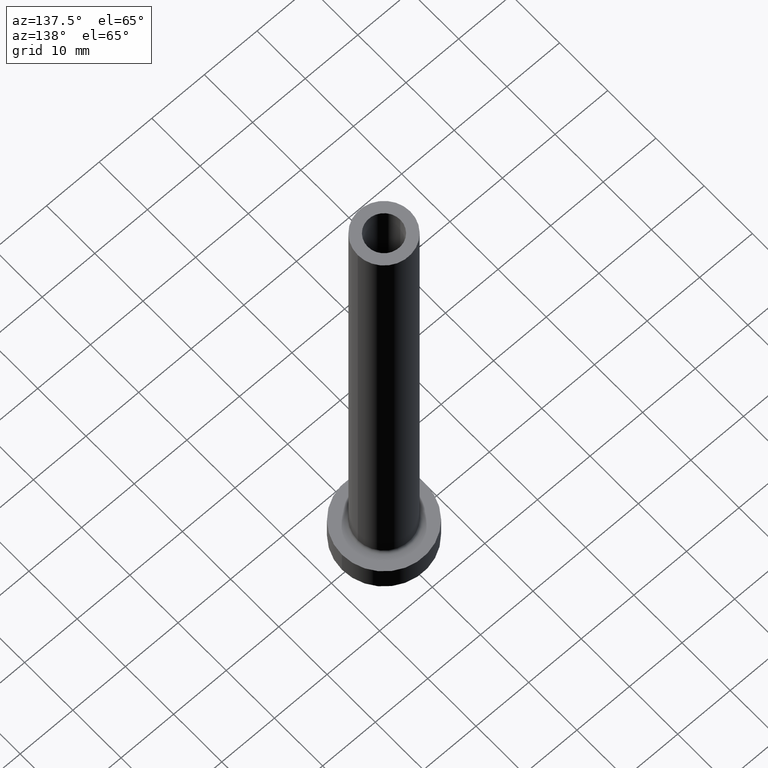
[diagram: clean part render]
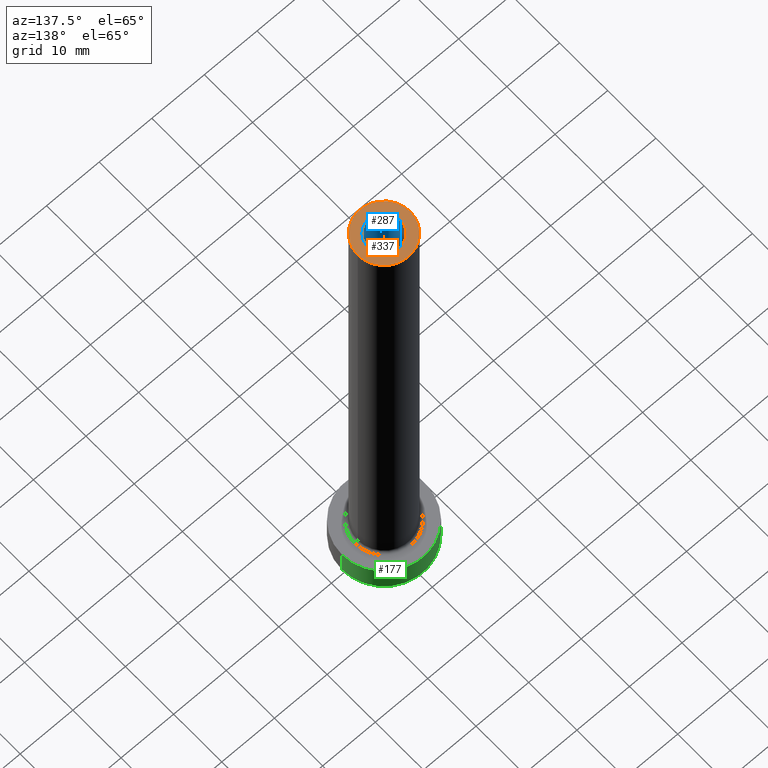
[diagram: same view with three faces highlighted in distinct colors, each labeled with its STEP entity id]
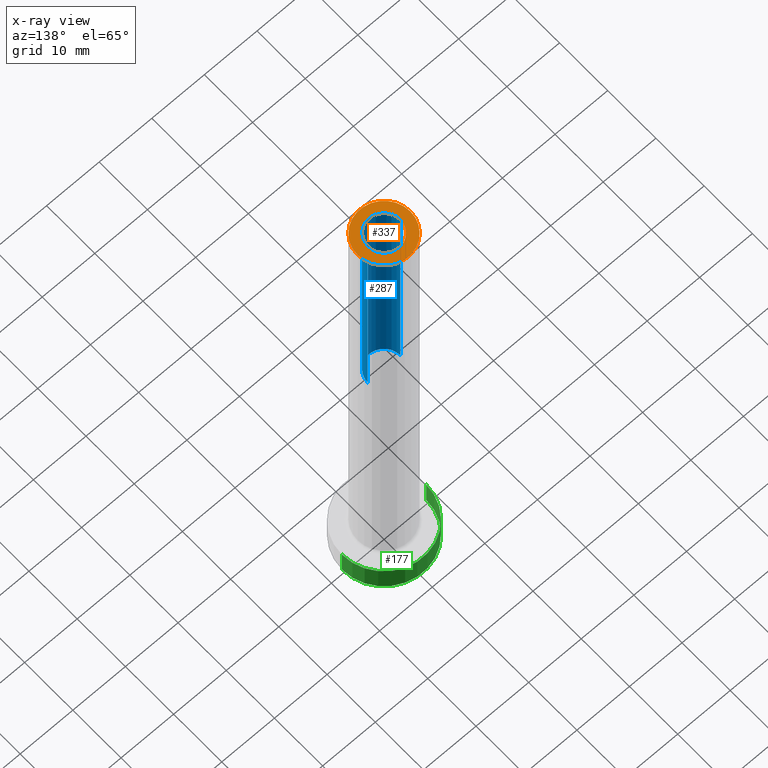
[diagram: x-ray of the same camera — body ghosted, the three highlighted faces saturated]
A machine part, auxiliary view with three faces highlighted in distinct colors.
The next image is the same camera in x-ray (body ghosted, the three faces saturated) — at least one of them is partly hidden behind the body in this view.
Their STEP definitions:

[orange] entity #337 — the highlighted planar face has unit normal (0, 0, 1).
#16 = CARTESIAN_POINT ( 'NONE',  ( -5.000000000000000000, 0.000000000000000000, 100.0000000000000000 ) ) ;
#17 = DIRECTION ( 'NONE',  ( 1.000000000000000000, 0.000000000000000000, 0.000000000000000000 ) ) ;
#18 = EDGE_LOOP ( 'NONE', ( #279, #242 ) ) ;
#31 = CARTESIAN_POINT ( 'NONE',  ( 0.000000000000000000, 0.000000000000000000, 100.0000000000000000 ) ) ;
#33 = VERTEX_POINT ( 'NONE', #83 ) ;
#44 = VERTEX_POINT ( 'NONE', #54 ) ;
#47 = AXIS2_PLACEMENT_3D ( 'NONE', #414, #182, #17 ) ;
#54 = CARTESIAN_POINT ( 'NONE',  ( 3.100000000000000089, 3.796405077356793932E-16, 100.0000000000000000 ) ) ;
#80 = CARTESIAN_POINT ( 'NONE',  ( 5.000000000000000000, 6.123233995736766282E-16, 100.0000000000000000 ) ) ;
#83 = CARTESIAN_POINT ( 'NONE',  ( -3.100000000000000089, 0.000000000000000000, 100.0000000000000000 ) ) ;
#93 = DIRECTION ( 'NONE',  ( 1.000000000000000000, 0.000000000000000000, -0.000000000000000000 ) ) ;
#102 = AXIS2_PLACEMENT_3D ( 'NONE', #31, #461, #93 ) ;
#106 = EDGE_CURVE ( 'NONE', #207, #170, #235, .T. ) ;
#124 = DIRECTION ( 'NONE',  ( 1.000000000000000000, 0.000000000000000000, 0.000000000000000000 ) ) ;
#128 = CIRCLE ( 'NONE', #288, 3.100000000000000089 ) ;
#134 = CIRCLE ( 'NONE', #171, 5.000000000000000000 ) ;
#154 = DIRECTION ( 'NONE',  ( 0.000000000000000000, 0.000000000000000000, 1.000000000000000000 ) ) ;
#163 = EDGE_LOOP ( 'NONE', ( #384, #345 ) ) ;
#170 = VERTEX_POINT ( 'NONE', #16 ) ;
#171 = AXIS2_PLACEMENT_3D ( 'NONE', #358, #175, #401 ) ;
#175 = DIRECTION ( 'NONE',  ( 0.000000000000000000, 0.000000000000000000, 1.000000000000000000 ) ) ;
#182 = DIRECTION ( 'NONE',  ( 0.000000000000000000, 0.000000000000000000, 1.000000000000000000 ) ) ;
#183 = DIRECTION ( 'NONE',  ( 0.000000000000000000, 0.000000000000000000, 1.000000000000000000 ) ) ;
#207 = VERTEX_POINT ( 'NONE', #80 ) ;
#235 = CIRCLE ( 'NONE', #457, 5.000000000000000000 ) ;
#240 = FACE_BOUND ( 'NONE', #163, .T. ) ;
#242 = ORIENTED_EDGE ( 'NONE', *, *, #106, .T. ) ;
#273 = CARTESIAN_POINT ( 'NONE',  ( 0.000000000000000000, 0.000000000000000000, 100.0000000000000000 ) ) ;
#279 = ORIENTED_EDGE ( 'NONE', *, *, #399, .T. ) ;
#288 = AXIS2_PLACEMENT_3D ( 'NONE', #273, #183, #456 ) ;
#305 = CARTESIAN_POINT ( 'NONE',  ( 0.000000000000000000, 0.000000000000000000, 100.0000000000000000 ) ) ;
#306 = EDGE_CURVE ( 'NONE', #33, #44, #128, .T. ) ;
#314 = PLANE ( 'NONE',  #102 ) ;
#324 = CIRCLE ( 'NONE', #47, 3.100000000000000089 ) ;
#337 = ADVANCED_FACE ( 'NONE', ( #240, #431 ), #314, .T. ) ;
#345 = ORIENTED_EDGE ( 'NONE', *, *, #371, .F. ) ;
#358 = CARTESIAN_POINT ( 'NONE',  ( 0.000000000000000000, 0.000000000000000000, 100.0000000000000000 ) ) ;
#371 = EDGE_CURVE ( 'NONE', #44, #33, #324, .T. ) ;
#384 = ORIENTED_EDGE ( 'NONE', *, *, #306, .F. ) ;
#399 = EDGE_CURVE ( 'NONE', #170, #207, #134, .T. ) ;
#401 = DIRECTION ( 'NONE',  ( 1.000000000000000000, 0.000000000000000000, 0.000000000000000000 ) ) ;
#414 = CARTESIAN_POINT ( 'NONE',  ( 0.000000000000000000, 0.000000000000000000, 100.0000000000000000 ) ) ;
#431 = FACE_OUTER_BOUND ( 'NONE', #18, .T. ) ;
#456 = DIRECTION ( 'NONE',  ( 1.000000000000000000, 0.000000000000000000, 0.000000000000000000 ) ) ;
#457 = AXIS2_PLACEMENT_3D ( 'NONE', #305, #154, #124 ) ;
#461 = DIRECTION ( 'NONE',  ( 0.000000000000000000, 0.000000000000000000, 1.000000000000000000 ) ) ;

[blue] entity #287 — the highlighted cylindrical surface (edge-blend (fillet) strip) has radius 3.1 mm, axis along (0, 0, -1).
#4 = EDGE_CURVE ( 'NONE', #33, #114, #303, .T. ) ;
#10 = EDGE_CURVE ( 'NONE', #44, #169, #312, .T. ) ;
#22 = CARTESIAN_POINT ( 'NONE',  ( 3.100000000000000089, 3.796405077356793932E-16, 100.0000000000000000 ) ) ;
#26 = FACE_OUTER_BOUND ( 'NONE', #227, .T. ) ;
#27 = AXIS2_PLACEMENT_3D ( 'NONE', #428, #205, #346 ) ;
#33 = VERTEX_POINT ( 'NONE', #83 ) ;
#42 = CARTESIAN_POINT ( 'NONE',  ( -3.100000000000000089, 0.000000000000000000, 55.00000000000000711 ) ) ;
#44 = VERTEX_POINT ( 'NONE', #54 ) ;
#52 = VECTOR ( 'NONE', #159, 1000.000000000000000 ) ;
#54 = CARTESIAN_POINT ( 'NONE',  ( 3.100000000000000089, 3.796405077356793932E-16, 100.0000000000000000 ) ) ;
#83 = CARTESIAN_POINT ( 'NONE',  ( -3.100000000000000089, 0.000000000000000000, 100.0000000000000000 ) ) ;
#114 = VERTEX_POINT ( 'NONE', #42 ) ;
#128 = CIRCLE ( 'NONE', #288, 3.100000000000000089 ) ;
#131 = DIRECTION ( 'NONE',  ( 0.000000000000000000, 0.000000000000000000, -1.000000000000000000 ) ) ;
#159 = DIRECTION ( 'NONE',  ( 0.000000000000000000, 0.000000000000000000, -1.000000000000000000 ) ) ;
#167 = CARTESIAN_POINT ( 'NONE',  ( 0.000000000000000000, 0.000000000000000000, 55.00000000000000711 ) ) ;
#169 = VERTEX_POINT ( 'NONE', #444 ) ;
#183 = DIRECTION ( 'NONE',  ( 0.000000000000000000, 0.000000000000000000, 1.000000000000000000 ) ) ;
#205 = DIRECTION ( 'NONE',  ( 0.000000000000000000, 0.000000000000000000, -1.000000000000000000 ) ) ;
#206 = ORIENTED_EDGE ( 'NONE', *, *, #352, .F. ) ;
#223 = DIRECTION ( 'NONE',  ( 1.000000000000000000, 0.000000000000000000, 0.000000000000000000 ) ) ;
#227 = EDGE_LOOP ( 'NONE', ( #430, #393, #206, #369 ) ) ;
#273 = CARTESIAN_POINT ( 'NONE',  ( 0.000000000000000000, 0.000000000000000000, 100.0000000000000000 ) ) ;
#287 = ADVANCED_FACE ( 'NONE', ( #26 ), #386, .F. ) ;
#288 = AXIS2_PLACEMENT_3D ( 'NONE', #273, #183, #456 ) ;
#303 = LINE ( 'NONE', #341, #395 ) ;
#306 = EDGE_CURVE ( 'NONE', #33, #44, #128, .T. ) ;
#312 = LINE ( 'NONE', #22, #52 ) ;
#341 = CARTESIAN_POINT ( 'NONE',  ( -3.100000000000000089, 0.000000000000000000, 100.0000000000000000 ) ) ;
#343 = CIRCLE ( 'NONE', #409, 3.100000000000000089 ) ;
#346 = DIRECTION ( 'NONE',  ( -1.000000000000000000, 0.000000000000000000, 0.000000000000000000 ) ) ;
#348 = DIRECTION ( 'NONE',  ( 0.000000000000000000, 0.000000000000000000, 1.000000000000000000 ) ) ;
#352 = EDGE_CURVE ( 'NONE', #114, #169, #343, .T. ) ;
#369 = ORIENTED_EDGE ( 'NONE', *, *, #4, .F. ) ;
#386 = CYLINDRICAL_SURFACE ( 'NONE', #27, 3.100000000000000089 ) ;
#393 = ORIENTED_EDGE ( 'NONE', *, *, #10, .T. ) ;
#395 = VECTOR ( 'NONE', #131, 1000.000000000000000 ) ;
#409 = AXIS2_PLACEMENT_3D ( 'NONE', #167, #348, #223 ) ;
#428 = CARTESIAN_POINT ( 'NONE',  ( 0.000000000000000000, 0.000000000000000000, 100.0000000000000000 ) ) ;
#430 = ORIENTED_EDGE ( 'NONE', *, *, #306, .T. ) ;
#444 = CARTESIAN_POINT ( 'NONE',  ( 3.100000000000000089, 3.796405077356793932E-16, 55.00000000000000711 ) ) ;
#456 = DIRECTION ( 'NONE',  ( 1.000000000000000000, 0.000000000000000000, 0.000000000000000000 ) ) ;

[green] entity #177 — the highlighted cylindrical surface (partial cylindrical patch) has radius 8 mm, axis along (-0, -0, -1).
#2 = EDGE_CURVE ( 'NONE', #245, #405, #45, .T. ) ;
#13 = CARTESIAN_POINT ( 'NONE',  ( 0.000000000000000000, 0.000000000000000000, 5.000000000000000000 ) ) ;
#21 = AXIS2_PLACEMENT_3D ( 'NONE', #176, #326, #222 ) ;
#45 = CIRCLE ( 'NONE', #310, 8.000000000000000000 ) ;
#63 = CARTESIAN_POINT ( 'NONE',  ( 0.000000000000000000, 0.000000000000000000, 5.000000000000000000 ) ) ;
#92 = VERTEX_POINT ( 'NONE', #308 ) ;
#111 = DIRECTION ( 'NONE',  ( -0.000000000000000000, -0.000000000000000000, -1.000000000000000000 ) ) ;
#113 = EDGE_CURVE ( 'NONE', #405, #140, #301, .T. ) ;
#116 = CIRCLE ( 'NONE', #21, 8.000000000000000000 ) ;
#138 = VECTOR ( 'NONE', #144, 1000.000000000000000 ) ;
#140 = VERTEX_POINT ( 'NONE', #141 ) ;
#141 = CARTESIAN_POINT ( 'NONE',  ( -8.000000000000000000, 0.000000000000000000, 0.000000000000000000 ) ) ;
#144 = DIRECTION ( 'NONE',  ( -0.000000000000000000, -0.000000000000000000, -1.000000000000000000 ) ) ;
#145 = EDGE_CURVE ( 'NONE', #92, #140, #116, .T. ) ;
#147 = CARTESIAN_POINT ( 'NONE',  ( -8.000000000000000000, 0.000000000000000000, 5.000000000000000000 ) ) ;
#176 = CARTESIAN_POINT ( 'NONE',  ( 0.000000000000000000, 0.000000000000000000, 0.000000000000000000 ) ) ;
#177 = ADVANCED_FACE ( 'NONE', ( #293 ), #224, .T. ) ;
#187 = DIRECTION ( 'NONE',  ( 0.000000000000000000, 0.000000000000000000, 1.000000000000000000 ) ) ;
#222 = DIRECTION ( 'NONE',  ( 1.000000000000000000, 0.000000000000000000, 0.000000000000000000 ) ) ;
#224 = CYLINDRICAL_SURFACE ( 'NONE', #404, 8.000000000000000000 ) ;
#241 = ORIENTED_EDGE ( 'NONE', *, *, #113, .F. ) ;
#245 = VERTEX_POINT ( 'NONE', #252 ) ;
#246 = ORIENTED_EDGE ( 'NONE', *, *, #145, .T. ) ;
#252 = CARTESIAN_POINT ( 'NONE',  ( 8.000000000000000000, 9.797174393178825657E-16, 5.000000000000000000 ) ) ;
#258 = DIRECTION ( 'NONE',  ( -1.000000000000000000, 0.000000000000000000, 0.000000000000000000 ) ) ;
#291 = EDGE_CURVE ( 'NONE', #245, #92, #382, .T. ) ;
#292 = VECTOR ( 'NONE', #455, 1000.000000000000000 ) ;
#293 = FACE_OUTER_BOUND ( 'NONE', #296, .T. ) ;
#296 = EDGE_LOOP ( 'NONE', ( #427, #449, #246, #241 ) ) ;
#301 = LINE ( 'NONE', #147, #138 ) ;
#308 = CARTESIAN_POINT ( 'NONE',  ( 8.000000000000000000, 9.797174393178825657E-16, 0.000000000000000000 ) ) ;
#309 = CARTESIAN_POINT ( 'NONE',  ( 8.000000000000000000, 9.797174393178825657E-16, 5.000000000000000000 ) ) ;
#310 = AXIS2_PLACEMENT_3D ( 'NONE', #63, #187, #460 ) ;
#326 = DIRECTION ( 'NONE',  ( 0.000000000000000000, 0.000000000000000000, 1.000000000000000000 ) ) ;
#382 = LINE ( 'NONE', #309, #292 ) ;
#398 = CARTESIAN_POINT ( 'NONE',  ( -8.000000000000000000, 0.000000000000000000, 5.000000000000000000 ) ) ;
#404 = AXIS2_PLACEMENT_3D ( 'NONE', #13, #111, #258 ) ;
#405 = VERTEX_POINT ( 'NONE', #398 ) ;
#427 = ORIENTED_EDGE ( 'NONE', *, *, #2, .F. ) ;
#449 = ORIENTED_EDGE ( 'NONE', *, *, #291, .T. ) ;
#455 = DIRECTION ( 'NONE',  ( -0.000000000000000000, -0.000000000000000000, -1.000000000000000000 ) ) ;
#460 = DIRECTION ( 'NONE',  ( 1.000000000000000000, 0.000000000000000000, 0.000000000000000000 ) ) ;